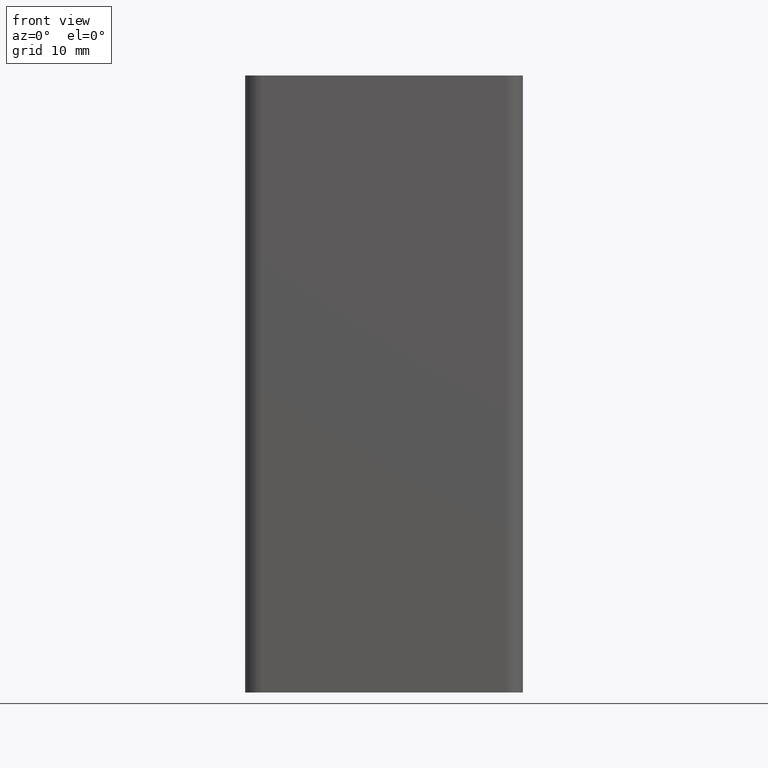
[diagram: clean part render]
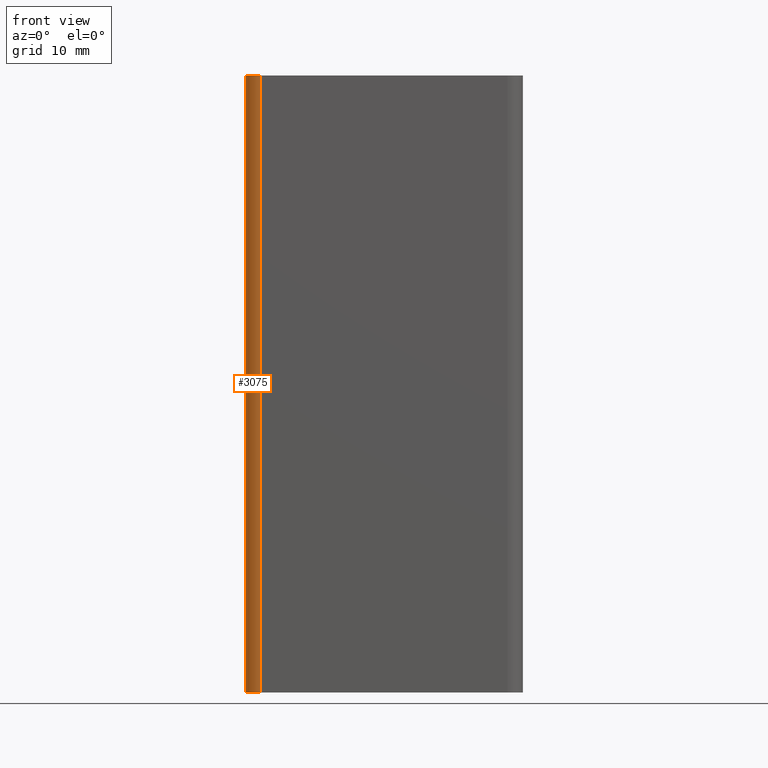
[diagram: same view with one face highlighted and labeled with its STEP entity id]
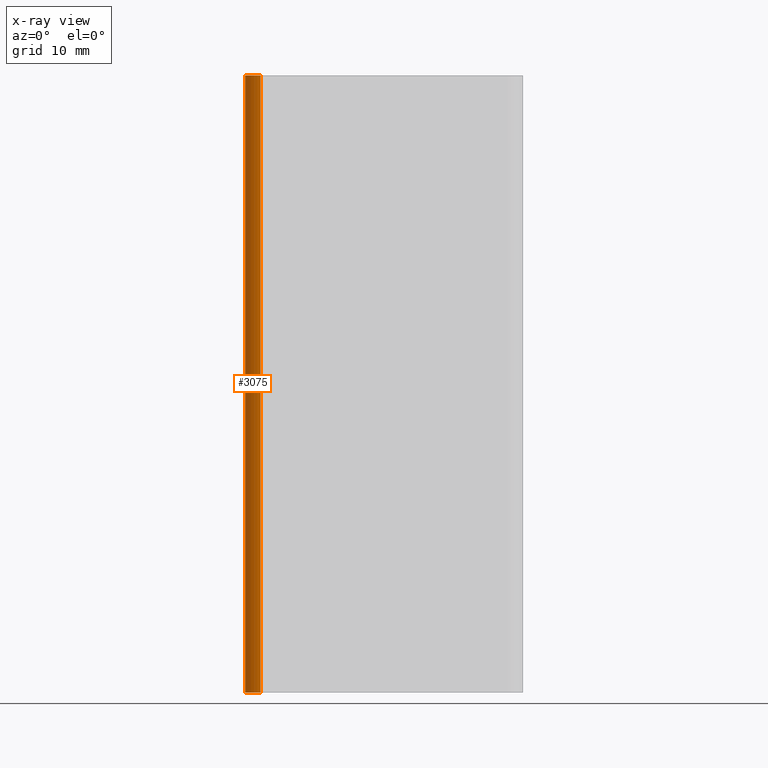
[diagram: x-ray of the same camera — body ghosted, the highlighted face saturated]
A machine part, front view. The second image highlights one B-rep face of the part: STEP entity #3075.
The next image is the same camera in x-ray: the body ghosted, the highlighted face saturated — about 0% of this face is hidden behind the body in this view.
In plain terms, the highlighted cylindrical surface (edge-blend (fillet) strip) has radius 2.5 mm, axis along (0, 0, 1).
Its self-contained STEP definition (entity closure, byte-faithful):
#214=CIRCLE('',#3413,2.5);
#215=CIRCLE('',#3414,2.5);
#310=CYLINDRICAL_SURFACE('',#3412,2.5);
#460=FACE_OUTER_BOUND('',#616,.T.);
#616=EDGE_LOOP('',(#2536,#2537,#2538,#2539));
#901=LINE('',#5265,#1173);
#903=LINE('',#5271,#1175);
#1173=VECTOR('',#4341,100.);
#1175=VECTOR('',#4347,100.);
#1480=VERTEX_POINT('',#5262);
#1481=VERTEX_POINT('',#5264);
#1482=VERTEX_POINT('',#5268);
#1483=VERTEX_POINT('',#5270);
#1931=EDGE_CURVE('',#1481,#1480,#901,.T.);
#1933=EDGE_CURVE('',#1480,#1482,#214,.T.);
#1934=EDGE_CURVE('',#1483,#1482,#903,.T.);
#1935=EDGE_CURVE('',#1481,#1483,#215,.T.);
#2536=ORIENTED_EDGE('',*,*,#1933,.T.);
#2537=ORIENTED_EDGE('',*,*,#1934,.F.);
#2538=ORIENTED_EDGE('',*,*,#1935,.F.);
#2539=ORIENTED_EDGE('',*,*,#1931,.T.);
#3075=ADVANCED_FACE('',(#460),#310,.T.);
#3412=AXIS2_PLACEMENT_3D('',#5267,#4343,#4344);
#3413=AXIS2_PLACEMENT_3D('',#5269,#4345,#4346);
#3414=AXIS2_PLACEMENT_3D('',#5272,#4348,#4349);
#4341=DIRECTION('',(0.,0.,1.));
#4343=DIRECTION('center_axis',(0.,0.,1.));
#4344=DIRECTION('ref_axis',(-1.,0.,0.));
#4345=DIRECTION('center_axis',(0.,0.,-1.));
#4346=DIRECTION('ref_axis',(-1.,0.,0.));
#4347=DIRECTION('',(0.,0.,1.));
#4348=DIRECTION('center_axis',(0.,0.,-1.));
#4349=DIRECTION('ref_axis',(-1.,0.,0.));
#5262=CARTESIAN_POINT('',(-20.,-22.5,100.));
#5264=CARTESIAN_POINT('',(-20.,-22.5,0.));
#5265=CARTESIAN_POINT('',(-20.,-22.5,0.));
#5267=CARTESIAN_POINT('Origin',(-20.,-20.,0.));
#5268=CARTESIAN_POINT('',(-22.5,-20.,100.));
#5269=CARTESIAN_POINT('Origin',(-20.,-20.,100.));
#5270=CARTESIAN_POINT('',(-22.5,-20.,0.));
#5271=CARTESIAN_POINT('',(-22.5,-20.,0.));
#5272=CARTESIAN_POINT('Origin',(-20.,-20.,0.));